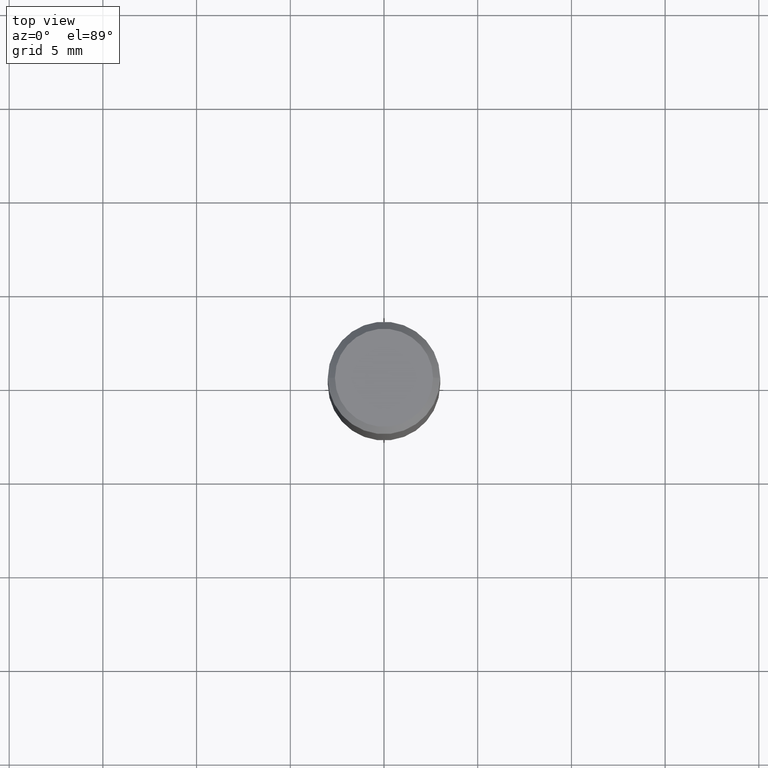
[diagram: clean part render]
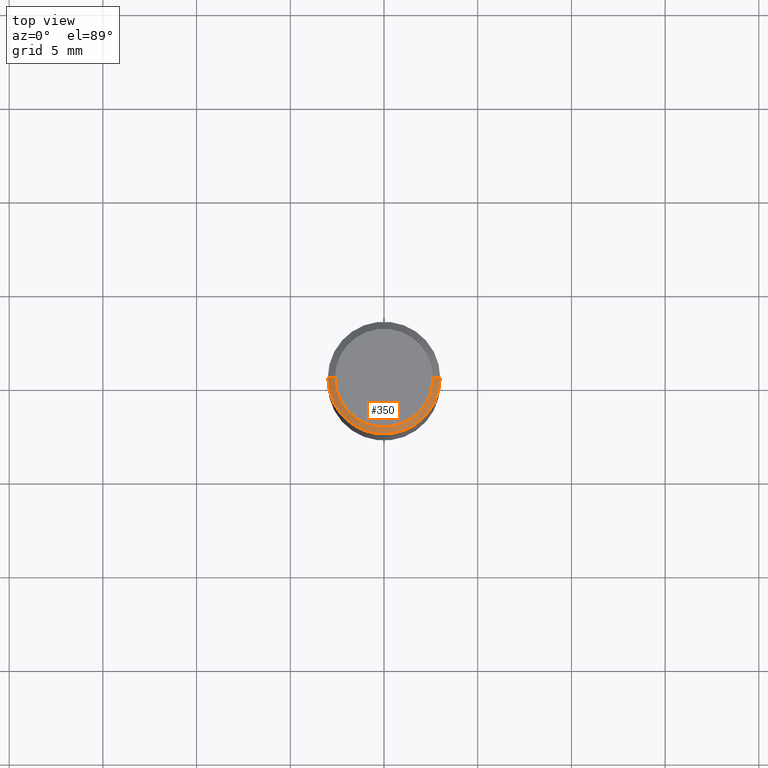
[diagram: same view with one face highlighted and labeled with its STEP entity id]
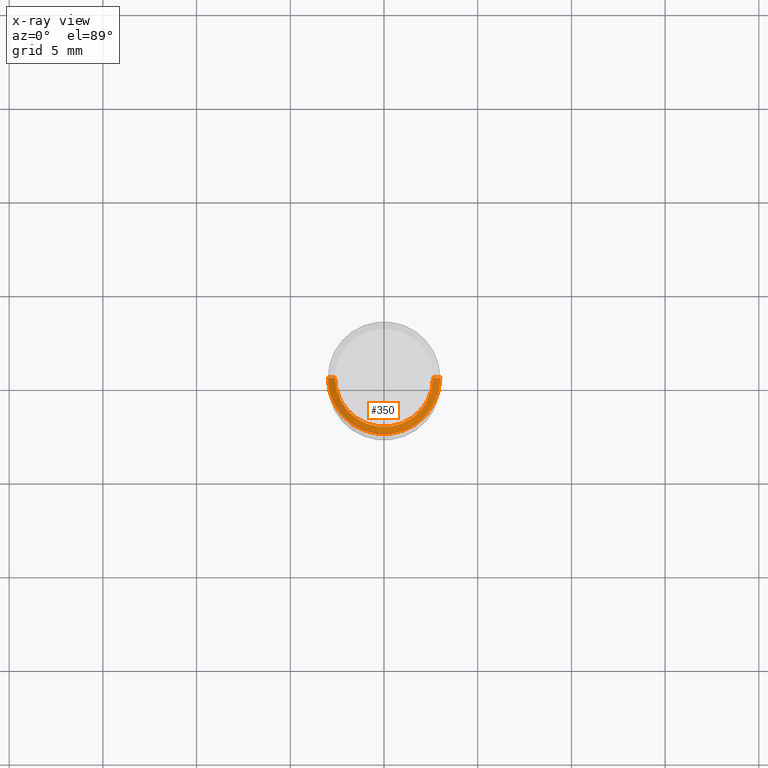
[diagram: x-ray of the same camera — body ghosted, the highlighted face saturated]
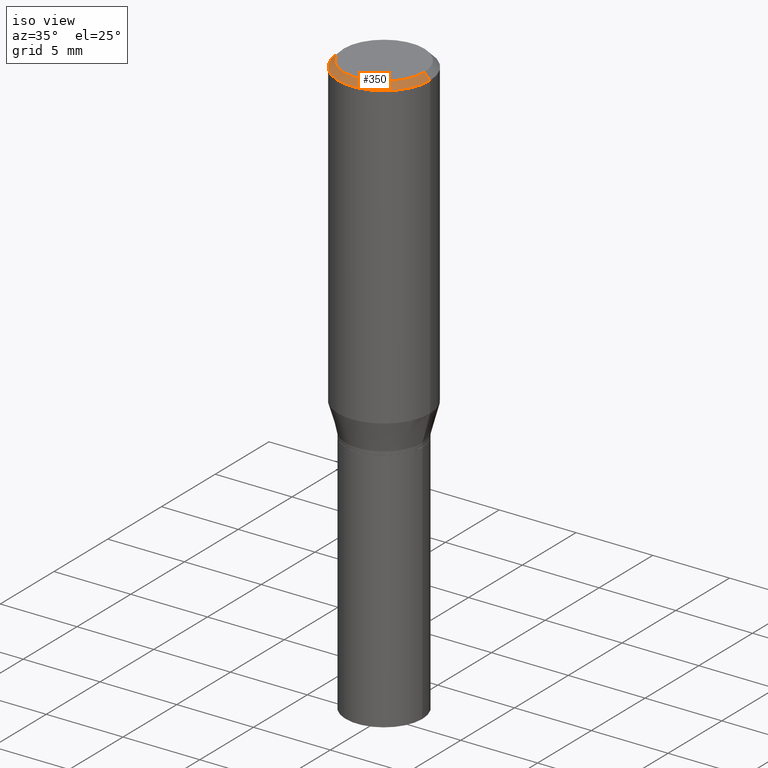
[diagram: same view with one face highlighted and labeled with its STEP entity id]
A machine part, top view. The second image highlights one B-rep face of the part: STEP entity #350.
The next image is the same camera in x-ray: the body ghosted, the highlighted face saturated — about 0% of this face is hidden behind the body in this view.
A second angle (iso view) of the same face is appended — the face is thin or edge-on in the first view.
In plain terms, the highlighted conical surface has half-angle 45 deg.
Its self-contained STEP definition (entity closure, byte-faithful):
#1 = CARTESIAN_POINT ( 'NONE',  ( -0.1180999999999999966, -5.605231488820216014E-16, -0.01499999999999999944 ) ) ;
#6 = DIRECTION ( 'NONE',  ( 2.445468806185136597E-29, -3.491481338843145583E-15, -1.000000000000000000 ) ) ;
#14 = AXIS2_PLACEMENT_3D ( 'NONE', #18, #303, #174 ) ;
#18 = CARTESIAN_POINT ( 'NONE',  ( 4.647400995173613138E-45, -6.635256932220833331E-31, -1.900413116462290932E-16 ) ) ;
#30 = CARTESIAN_POINT ( 'NONE',  ( 3.668203209277705088E-31, -5.237222008264718399E-17, -0.01499999999999999944 ) ) ;
#42 = CONICAL_SURFACE ( 'NONE', #213, 0.1180999999999999966, 0.7853981633974543852 ) ;
#46 = LINE ( 'NONE', #191, #186 ) ;
#59 = EDGE_LOOP ( 'NONE', ( #273, #362, #276, #426 ) ) ;
#68 = VECTOR ( 'NONE', #262, 39.37007874015748854 ) ;
#114 = AXIS2_PLACEMENT_3D ( 'NONE', #30, #346, #309 ) ;
#119 = CARTESIAN_POINT ( 'NONE',  ( -0.1180999999999999966, 7.723156721521009862E-16, -0.01499999999999999944 ) ) ;
#122 = CARTESIAN_POINT ( 'NONE',  ( 0.1180999999999999966, -8.770601123173952432E-16, -0.01499999999999999944 ) ) ;
#128 = CARTESIAN_POINT ( 'NONE',  ( 0.1031000000000000111, -7.849571885948552706E-16, -1.900413116462238423E-16 ) ) ;
#171 = EDGE_CURVE ( 'NONE', #429, #466, #46, .T. ) ;
#174 = DIRECTION ( 'NONE',  ( 1.000000000000000000, -6.982962677686265922E-15, 4.883331232093008327E-29 ) ) ;
#186 = VECTOR ( 'NONE', #333, 39.37007874015748854 ) ;
#191 = CARTESIAN_POINT ( 'NONE',  ( 0.1180999999999999966, -8.625970336194650129E-16, -0.01499999999999999944 ) ) ;
#193 = CARTESIAN_POINT ( 'NONE',  ( -0.1031000000000000111, 7.461295621107772493E-16, -1.900413116462341961E-16 ) ) ;
#213 = AXIS2_PLACEMENT_3D ( 'NONE', #245, #6, #218 ) ;
#218 = DIRECTION ( 'NONE',  ( -1.000000000000000000, 6.982962677686266711E-15, 0.000000000000000000 ) ) ;
#224 = FACE_OUTER_BOUND ( 'NONE', #59, .T. ) ;
#238 = VERTEX_POINT ( 'NONE', #1 ) ;
#245 = CARTESIAN_POINT ( 'NONE',  ( 3.668203209277705088E-31, -5.237222008264718399E-17, -0.01499999999999999944 ) ) ;
#249 = EDGE_CURVE ( 'NONE', #238, #466, #360, .T. ) ;
#262 = DIRECTION ( 'NONE',  ( -0.7071067811865516806, 2.468850131082300842E-15, -0.7071067811865431318 ) ) ;
#273 = ORIENTED_EDGE ( 'NONE', *, *, #171, .F. ) ;
#276 = ORIENTED_EDGE ( 'NONE', *, *, #348, .T. ) ;
#289 = CIRCLE ( 'NONE', #14, 0.1031000000000000111 ) ;
#303 = DIRECTION ( 'NONE',  ( -2.445468806185136597E-29, 3.491481338843145583E-15, 1.000000000000000000 ) ) ;
#309 = DIRECTION ( 'NONE',  ( 1.000000000000000000, -6.982962677686266711E-15, 0.000000000000000000 ) ) ;
#333 = DIRECTION ( 'NONE',  ( 0.7071067811865516806, -7.319954787623268667E-15, -0.7071067811865431318 ) ) ;
#346 = DIRECTION ( 'NONE',  ( -2.445468806185136597E-29, 3.491481338843145583E-15, 1.000000000000000000 ) ) ;
#348 = EDGE_CURVE ( 'NONE', #438, #238, #431, .T. ) ;
#350 = ADVANCED_FACE ( 'NONE', ( #224 ), #42, .T. ) ;
#360 = CIRCLE ( 'NONE', #114, 0.1180999999999999966 ) ;
#362 = ORIENTED_EDGE ( 'NONE', *, *, #444, .F. ) ;
#426 = ORIENTED_EDGE ( 'NONE', *, *, #249, .T. ) ;
#429 = VERTEX_POINT ( 'NONE', #128 ) ;
#431 = LINE ( 'NONE', #119, #68 ) ;
#438 = VERTEX_POINT ( 'NONE', #193 ) ;
#444 = EDGE_CURVE ( 'NONE', #438, #429, #289, .T. ) ;
#466 = VERTEX_POINT ( 'NONE', #122 ) ;